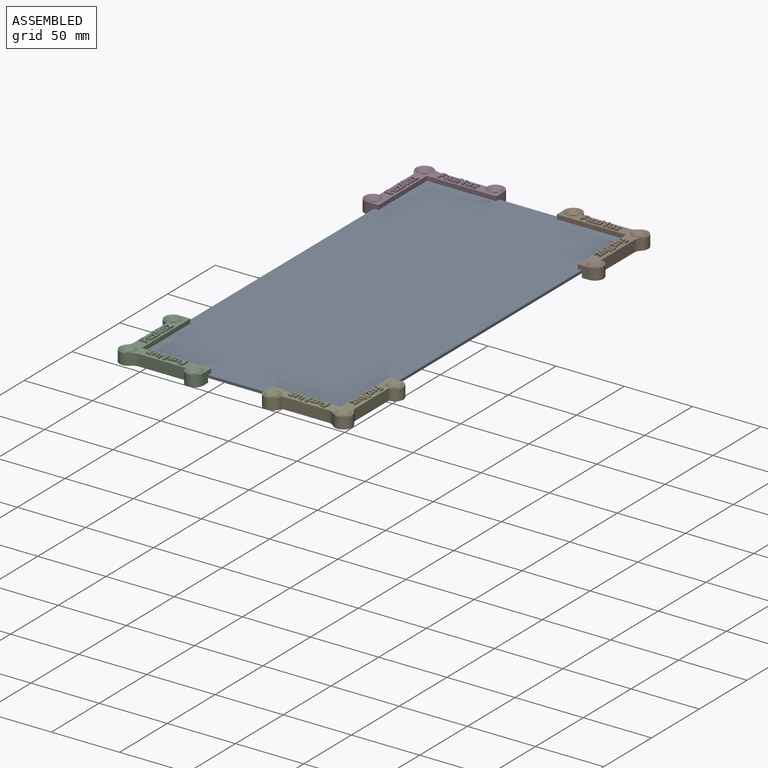
[diagram: assembled view]
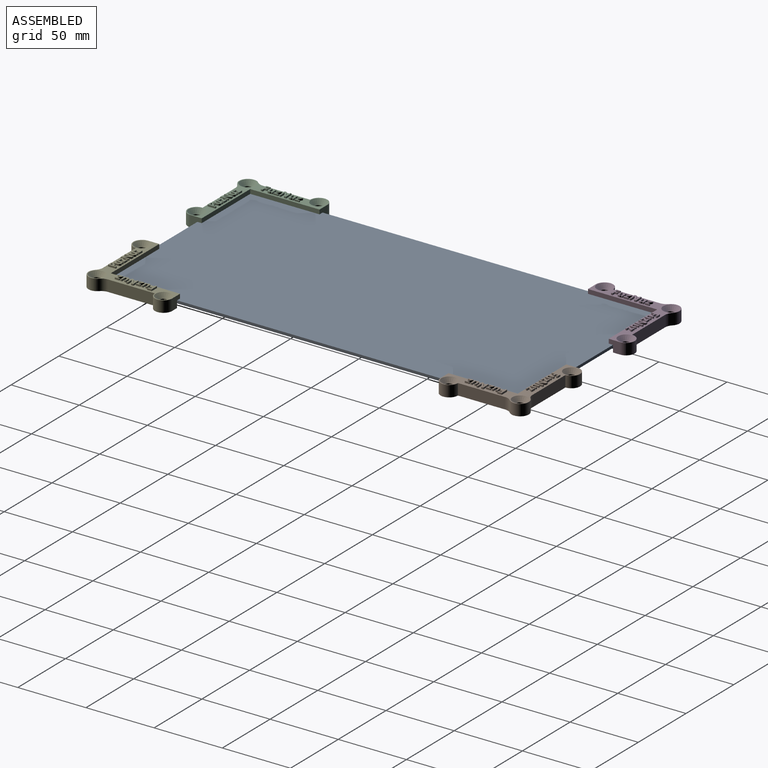
[diagram: assembled view, second angle]
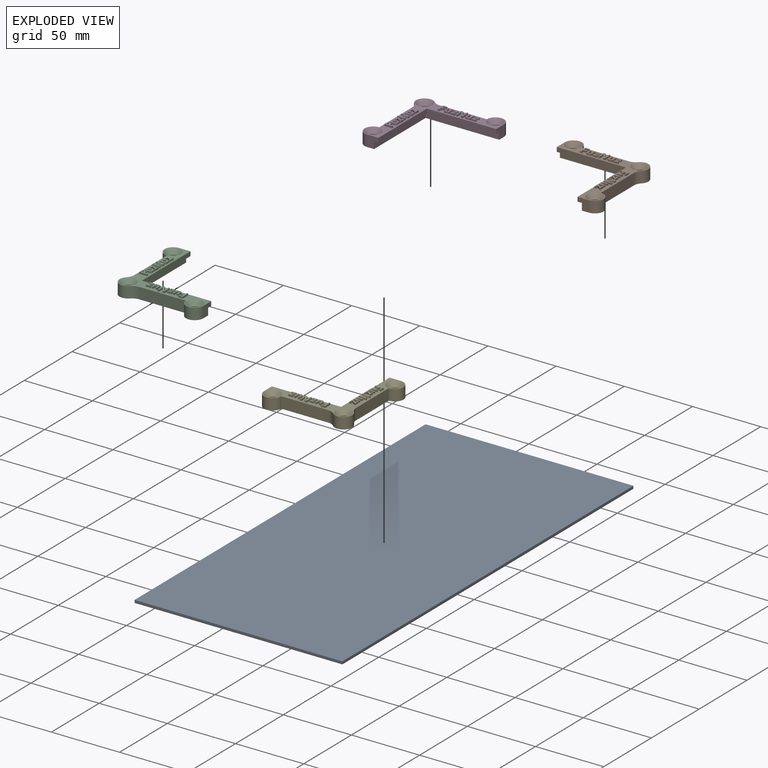
[diagram: exploded view]
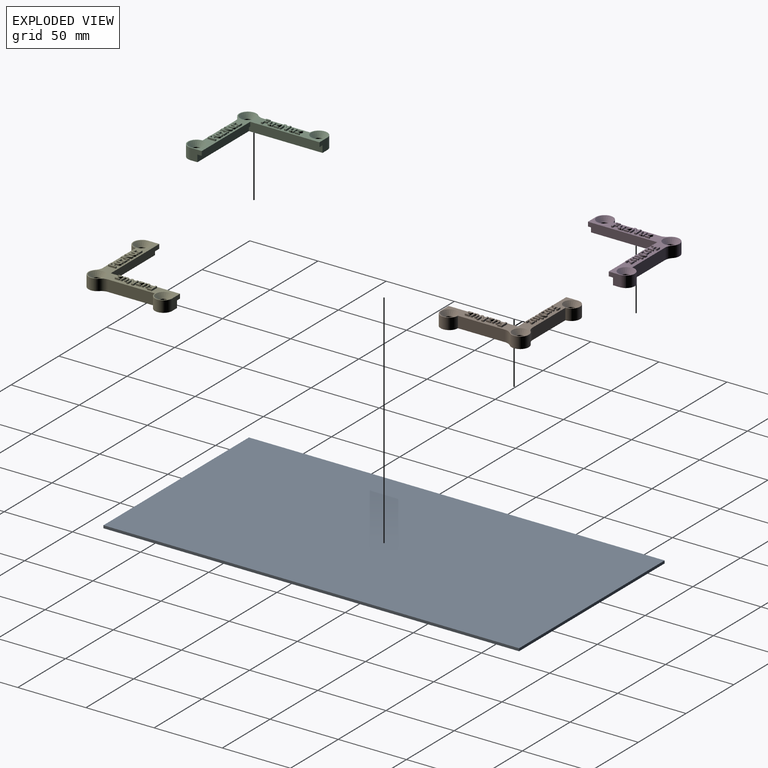
[diagram: exploded view, second angle]
ASSEMBLY  parts=5 mates=4
PART A: 6 faces, bbox 152.4x304.8x2 mm
  f0: plane 304.8x1.98mm, normal (1,0,0), area 603.9mm2, adj f1,f3,f4,f5
  f1: plane 152.4x1.98mm, normal (0,1,0), area 301.9mm2, adj f0,f2,f4,f5
  f2: plane 304.8x1.98mm, normal (-1,0,0), area 603.9mm2, adj f1,f3,f4,f5
  f3: plane 152.4x1.98mm, normal (0,-1,0), area 301.9mm2, adj f0,f2,f4,f5
  f4: plane 304.8x152.4mm, normal (0,0,1), area 46451.5mm2, adj f0,f1,f2,f3
  f5: plane 304.8x152.4mm, normal (0,0,-1), area 46451.5mm2, adj f0,f1,f2,f3
PART B: 190 faces, bbox 65.4x65.4x9.5 mm
  f0: plane 65.41x65.41mm, normal (0,0,1), area 649.1mm2, adj f1,f3,f4,f5,f6,f7,f8,f9
  f1: plane 8.26x8.26mm, normal (0,-1,0), area 52mm2, adj f0,f2,f3,f10,f14,f15
  f2: plane 65.41x65.41mm, normal (0,0,-1), area 685.2mm2, adj f1,f5,f6,f7,f8,f9,f10,f11
  f3: plane 50.8x3.18mm, normal (1,0,0), area 161.3mm2, adj f0,f1,f4,f15
  f4: plane 50.8x3.18mm, normal (0,-1,0), area 161.3mm2, adj f0,f3,f5,f15
  f5: plane 8.26x8.26mm, normal (1,0,0), area 52mm2, adj f0,f2,f4,f6,f13,f15
  f6: cylinder r=6.35mm len=12.7mm, axis (0,0,-1), area 164.7mm2, adj f0,f2,f5,f7
  f7: plane 34.48x8.26mm, normal (0,1,0), area 284.7mm2, adj f0,f2,f6,f11
  f8: cylinder r=6.35mm len=10.88mm, axis (0,0,-1), area 165.6mm2, adj f0,f2,f11,f12
  f9: plane 34.48x8.26mm, normal (-1,0,0), area 284.7mm2, adj f0,f2,f10,f12
  f10: cylinder r=6.35mm len=12.7mm, axis (0,0,-1), area 164.7mm2, adj f0,f1,f2,f9
  f11: cylinder r=6.99mm len=8.26mm, axis (0,0,-1), area 45.8mm2, adj f0,f2,f7,f8
  f12: cylinder r=6.99mm len=8.26mm, axis (0,0,-1), area 45.8mm2, adj f0,f2,f8,f9
  f13: plane 53.98x5.08mm, normal (0,-1,0), area 274.2mm2, adj f2,f5,f14,f15
  f14: plane 53.98x5.08mm, normal (1,0,0), area 274.2mm2, adj f1,f2,f13,f15
  f15: plane 53.98x53.98mm, normal (0,0,-1), area 332.7mm2, adj f1,f3,f4,f5,f13,f14
  f16: cylinder r=2.9mm len=5.79mm, axis (0,0,1), area 91.2mm2, adj f2,f17
  f17: cone r=2.9mm half-angle=41deg, axis (0,0,1), area 116.3mm2, adj f0,f16
  f18: cylinder r=2.9mm len=5.79mm, axis (0,0,1), area 91.2mm2, adj f2,f19
  f19: cone r=2.9mm half-angle=41deg, axis (0,0,1), area 116.3mm2, adj f0,f18
  f20: cylinder r=2.9mm len=5.79mm, axis (0,0,1), area 91.2mm2, adj f2,f21
  f21: cone r=2.9mm half-angle=41deg, axis (0,0,1), area 116.3mm2, adj f0,f20
  f22: plane 1.27x1.18mm, normal (0,-1,0), area 1.5mm2, adj f0,f23,f31,f32
  f23: plane 2.24x1.27mm, normal (1,0,0), area 2.8mm2, adj f0,f22,f24,f32
  f24: plane 1.92x1.27mm, normal (0,-1,0), area 2.4mm2, adj f0,f23,f25,f32
  f25: plane 1.27x0.98mm, normal (1,0,0), area 1.2mm2, adj f0,f24,f26,f32
  f26: plane 1.92x1.27mm, normal (0,1,0), area 2.4mm2, adj f0,f25,f27,f32
  f27: plane 1.46x1.27mm, normal (1,0,0), area 1.9mm2, adj f0,f26,f28,f32
  f28: plane 2.07x1.27mm, normal (0,-1,0), area 2.6mm2, adj f0,f27,f29,f32
  f29: plane 1.27x0.98mm, normal (1,0,0), area 1.3mm2, adj f0,f28,f30,f32
  f30: plane 3.25x1.27mm, normal (0,1,0), area 4.1mm2, adj f0,f29,f31,f32
  f31: plane 5.67x1.27mm, normal (-1,0,0), area 7.2mm2, adj f0,f22,f30,f32
  f32: plane 5.67x3.25mm, normal (0,0,1), area 10.6mm2, adj f22,f23,f24,f25,f26,f27,f28,f29
  f33: plane 1.27x0.55mm, normal (-0.96,-0.28,0), area 0.7mm2, adj f0,f34,f49,f50
  f34: plane 1.27x0.91mm, normal (0,-1,0), area 1.2mm2, adj f0,f33,f35,f50
  f35: plane 4.33x1.27mm, normal (1,0,0), area 5.5mm2, adj f0,f34,f36,f50
  f36: plane 1.27x1.18mm, normal (0,1,0), area 1.5mm2, adj f0,f35,f37,f50
  f37: plane 2.04x1.27mm, normal (-1,0,0), area 2.6mm2, adj f0,f36,f38,f50
  f38: extruded ~1.27x1.1mm, area 1.4mm2, adj f0,f37,f39,f50
  f39: extruded ~1.27x0.72mm, area 1mm2, adj f0,f38,f40,f50
  f40: extruded ~1.27x0.53mm, area 0.8mm2, adj f0,f39,f41,f50
  f41: extruded ~1.27x0.7mm, area 0.9mm2, adj f0,f40,f42,f50
  f42: plane 2.53x1.27mm, normal (1,0,0), area 3.2mm2, adj f0,f41,f43,f50
  f43: plane 1.27x1.18mm, normal (0,1,0), area 1.5mm2, adj f0,f42,f44,f50
  f44: plane 2.83x1.27mm, normal (-1,0,0), area 3.6mm2, adj f0,f43,f45,f50
  f45: extruded ~1.27x1.18mm, area 1.6mm2, adj f0,f44,f46,f50
  f46: extruded ~1.27x1.15mm, area 1.6mm2, adj f0,f45,f47,f50
  f47: extruded ~1.27x0.79mm, area 1mm2, adj f0,f46,f48,f50
  f48: extruded ~1.27x0.54mm, area 0.9mm2, adj f0,f47,f49,f50
  f49: plane 1.27x0.06mm, normal (0,-1,0), area 0.1mm2, adj f0,f33,f48,f50
  f50: plane 4.41x4mm, normal (0,0,1), area 11.5mm2, adj f33,f34,f35,f36,f37,f38,f39,f40
  f51: plane 3.42x1.27mm, normal (0,-1,0), area 4.3mm2, adj f0,f52,f60,f61
  f52: plane 1.27x0.9mm, normal (1,0,0), area 1.1mm2, adj f0,f51,f53,f61
  f53: plane 2.02x1.27mm, normal (0,1,0), area 2.6mm2, adj f0,f52,f54,f61
  f54: plane 2.66x1.95mm, normal (0.81,-0.59,0), area 4.2mm2, adj f0,f53,f55,f61
  f55: plane 1.27x0.77mm, normal (1,0,0), area 1mm2, adj f0,f54,f56,f61
  f56: plane 3.23x1.27mm, normal (0,1,0), area 4.1mm2, adj f0,f55,f57,f61
  f57: plane 1.27x0.9mm, normal (-1,0,0), area 1.1mm2, adj f0,f56,f58,f61
  f58: plane 1.89x1.27mm, normal (0,-1,0), area 2.4mm2, adj f0,f57,f59,f61
  f59: plane 2.73x2.01mm, normal (-0.81,0.59,0), area 4.3mm2, adj f0,f58,f60,f61
  f60: plane 1.27x0.7mm, normal (-1,0,0), area 0.9mm2, adj f0,f51,f59,f61
  f61: plane 4.33x3.42mm, normal (0,0,1), area 9.1mm2, adj f51,f52,f53,f54,f55,f56,f57,f58
  f62: plane 1.53x1.27mm, normal (0,-1,0), area 1.9mm2, adj f0,f63,f75,f76
  f63: plane 5.67x1.27mm, normal (1,0,0), area 7.2mm2, adj f0,f62,f64,f76
  f64: plane 1.27x1.08mm, normal (0,1,0), area 1.4mm2, adj f0,f63,f65,f76
  f65: plane 2.68x1.27mm, normal (-1,0,0), area 3.4mm2, adj f0,f64,f66,f76
  f66: extruded ~1.56x1.27mm, area 2mm2, adj f0,f65,f67,f76
  f67: plane 1.27x0.03mm, normal (0,1,0), area 0mm2, adj f0,f66,f68,f76
  f68: plane 4.24x2.46mm, normal (0.87,0.5,0), area 6.2mm2, adj f0,f67,f69,f76
  f69: plane 1.52x1.27mm, normal (0,1,0), area 1.9mm2, adj f0,f68,f70,f76
  f70: plane 5.67x1.27mm, normal (-1,0,0), area 7.2mm2, adj f0,f69,f71,f76
  f71: plane 1.27x1.07mm, normal (0,-1,0), area 1.4mm2, adj f0,f70,f72,f76
  f72: plane 2.67x1.27mm, normal (1,0,0), area 3.4mm2, adj f0,f71,f73,f76
  f73: extruded ~1.62x1.27mm, area 2.1mm2, adj f0,f72,f74,f76
  f74: plane 1.27x0.03mm, normal (0,-1,0), area 0mm2, adj f0,f73,f75,f76
  f75: plane 4.29x2.47mm, normal (-0.87,-0.5,0), area 6.3mm2, adj f0,f62,f74,f76
  f76: plane 5.67x5.03mm, normal (0,0,1), area 18.2mm2, adj f62,f63,f64,f65,f66,f67,f68,f69
  f77: plane 1.27x0.55mm, normal (-0.96,-0.28,0), area 0.7mm2, adj f0,f78,f93,f94
  f78: plane 1.27x0.91mm, normal (0,-1,0), area 1.2mm2, adj f0,f77,f79,f94
  f79: plane 4.33x1.27mm, normal (1,0,0), area 5.5mm2, adj f0,f78,f80,f94
  f80: plane 1.27x1.18mm, normal (0,1,0), area 1.5mm2, adj f0,f79,f81,f94
  f81: plane 2.04x1.27mm, normal (-1,0,0), area 2.6mm2, adj f0,f80,f82,f94
  f82: extruded ~1.27x1.1mm, area 1.4mm2, adj f0,f81,f83,f94
  f83: extruded ~1.27x0.72mm, area 1mm2, adj f0,f82,f84,f94
  f84: extruded ~1.27x0.53mm, area 0.8mm2, adj f0,f83,f85,f94
  f85: extruded ~1.27x0.7mm, area 0.9mm2, adj f0,f84,f86,f94
  f86: plane 2.53x1.27mm, normal (1,0,0), area 3.2mm2, adj f0,f85,f87,f94
  f87: plane 1.27x1.18mm, normal (0,1,0), area 1.5mm2, adj f0,f86,f88,f94
  f88: plane 2.83x1.27mm, normal (-1,0,0), area 3.6mm2, adj f0,f87,f89,f94
  f89: extruded ~1.27x1.18mm, area 1.6mm2, adj f0,f88,f90,f94
  f90: extruded ~1.27x1.15mm, area 1.6mm2, adj f0,f89,f91,f94
  f91: extruded ~1.27x0.79mm, area 1mm2, adj f0,f90,f92,f94
  f92: extruded ~1.27x0.54mm, area 0.9mm2, adj f0,f91,f93,f94
  f93: plane 1.27x0.06mm, normal (0,-1,0), area 0.1mm2, adj f0,f77,f92,f94
  f94: plane 4.41x4mm, normal (0,0,1), area 11.5mm2, adj f77,f78,f79,f80,f81,f82,f83,f84
  f95: plane 3.42x1.27mm, normal (0,-1,0), area 4.3mm2, adj f0,f96,f104,f105
  f96: plane 1.27x0.9mm, normal (1,0,0), area 1.1mm2, adj f0,f95,f97,f105
  f97: plane 2.02x1.27mm, normal (0,1,0), area 2.6mm2, adj f0,f96,f98,f105
  f98: plane 2.66x1.95mm, normal (0.81,-0.59,0), area 4.2mm2, adj f0,f97,f99,f105
  f99: plane 1.27x0.77mm, normal (1,0,0), area 1mm2, adj f0,f98,f100,f105
  f100: plane 3.23x1.27mm, normal (0,1,0), area 4.1mm2, adj f0,f99,f101,f105
  f101: plane 1.27x0.9mm, normal (-1,0,0), area 1.1mm2, adj f0,f100,f102,f105
  f102: plane 1.89x1.27mm, normal (0,-1,0), area 2.4mm2, adj f0,f101,f103,f105
  f103: plane 2.73x2.01mm, normal (-0.81,0.59,0), area 4.3mm2, adj f0,f102,f104,f105
  f104: plane 1.27x0.7mm, normal (-1,0,0), area 0.9mm2, adj f0,f95,f103,f105
  f105: plane 4.33x3.42mm, normal (0,0,1), area 9.1mm2, adj f95,f96,f97,f98,f99,f100,f101,f102
  f106: plane 1.27x1.18mm, normal (1,0,0), area 1.5mm2, adj f0,f107,f115,f116
  f107: plane 2.24x1.27mm, normal (0,1,0), area 2.8mm2, adj f0,f106,f108,f116
  f108: plane 1.92x1.27mm, normal (1,0,0), area 2.4mm2, adj f0,f107,f109,f116
  f109: plane 1.27x0.98mm, normal (0,1,0), area 1.2mm2, adj f0,f108,f110,f116
  f110: plane 1.92x1.27mm, normal (-1,0,0), area 2.4mm2, adj f0,f109,f111,f116
  f111: plane 1.46x1.27mm, normal (0,1,0), area 1.9mm2, adj f0,f110,f112,f116
  f112: plane 2.07x1.27mm, normal (1,0,0), area 2.6mm2, adj f0,f111,f113,f116
  f113: plane 1.27x0.98mm, normal (0,1,0), area 1.3mm2, adj f0,f112,f114,f116
  f114: plane 3.25x1.27mm, normal (-1,0,0), area 4.1mm2, adj f0,f113,f115,f116
  f115: plane 5.67x1.27mm, normal (0,-1,0), area 7.2mm2, adj f0,f106,f114,f116
  f116: plane 5.67x3.25mm, normal (0,0,1), area 10.6mm2, adj f106,f107,f108,f109,f110,f111,f112,f113
  f117: plane 1.27x0.55mm, normal (0.28,-0.96,0), area 0.7mm2, adj f0,f118,f133,f134
  f118: plane 1.27x0.91mm, normal (1,0,0), area 1.2mm2, adj f0,f117,f119,f134
  f119: plane 4.33x1.27mm, normal (0,1,0), area 5.5mm2, adj f0,f118,f120,f134
  f120: plane 1.27x1.18mm, normal (-1,0,0), area 1.5mm2, adj f0,f119,f121,f134
  f121: plane 2.04x1.27mm, normal (0,-1,0), area 2.6mm2, adj f0,f120,f122,f134
  f122: extruded ~1.27x1.1mm, area 1.4mm2, adj f0,f121,f123,f134
  f123: extruded ~1.27x0.72mm, area 1mm2, adj f0,f122,f124,f134
  f124: extruded ~1.27x0.53mm, area 0.8mm2, adj f0,f123,f125,f134
  f125: extruded ~1.27x0.7mm, area 0.9mm2, adj f0,f124,f126,f134
  f126: plane 2.53x1.27mm, normal (0,1,0), area 3.2mm2, adj f0,f125,f127,f134
  f127: plane 1.27x1.18mm, normal (-1,0,0), area 1.5mm2, adj f0,f126,f128,f134
  f128: plane 2.83x1.27mm, normal (0,-1,0), area 3.6mm2, adj f0,f127,f129,f134
  f129: extruded ~1.27x1.18mm, area 1.6mm2, adj f0,f128,f130,f134
  f130: extruded ~1.27x1.15mm, area 1.6mm2, adj f0,f129,f131,f134
  f131: extruded ~1.27x0.79mm, area 1mm2, adj f0,f130,f132,f134
  f132: extruded ~1.27x0.54mm, area 0.9mm2, adj f0,f131,f133,f134
  f133: plane 1.27x0.06mm, normal (1,0,0), area 0.1mm2, adj f0,f117,f132,f134
  f134: plane 4.41x4mm, normal (0,0,1), area 11.5mm2, adj f117,f118,f119,f120,f121,f122,f123,f124
  f135: plane 3.42x1.27mm, normal (1,0,0), area 4.3mm2, adj f0,f136,f144,f145
  f136: plane 1.27x0.9mm, normal (0,1,0), area 1.1mm2, adj f0,f135,f137,f145
  f137: plane 2.02x1.27mm, normal (-1,0,0), area 2.6mm2, adj f0,f136,f138,f145
  f138: plane 2.66x1.95mm, normal (0.59,0.81,0), area 4.2mm2, adj f0,f137,f139,f145
  f139: plane 1.27x0.77mm, normal (0,1,0), area 1mm2, adj f0,f138,f140,f145
  f140: plane 3.23x1.27mm, normal (-1,0,0), area 4.1mm2, adj f0,f139,f141,f145
  f141: plane 1.27x0.9mm, normal (0,-1,0), area 1.1mm2, adj f0,f140,f142,f145
  f142: plane 1.89x1.27mm, normal (1,0,0), area 2.4mm2, adj f0,f141,f143,f145
  f143: plane 2.73x2.01mm, normal (-0.59,-0.81,0), area 4.3mm2, adj f0,f142,f144,f145
  f144: plane 1.27x0.7mm, normal (0,-1,0), area 0.9mm2, adj f0,f135,f143,f145
  f145: plane 4.33x3.42mm, normal (0,0,1), area 9.1mm2, adj f135,f136,f137,f138,f139,f140,f141,f142
  f146: plane 1.53x1.27mm, normal (1,0,0), area 1.9mm2, adj f0,f147,f159,f160
  f147: plane 5.67x1.27mm, normal (0,1,0), area 7.2mm2, adj f0,f146,f148,f160
  f148: plane 1.27x1.08mm, normal (-1,0,0), area 1.4mm2, adj f0,f147,f149,f160
  f149: plane 2.68x1.27mm, normal (0,-1,0), area 3.4mm2, adj f0,f148,f150,f160
  f150: extruded ~1.56x1.27mm, area 2mm2, adj f0,f149,f151,f160
  f151: plane 1.27x0.03mm, normal (-1,0,0), area 0mm2, adj f0,f150,f152,f160
  f152: plane 4.24x2.46mm, normal (-0.5,0.87,0), area 6.2mm2, adj f0,f151,f153,f160
  f153: plane 1.52x1.27mm, normal (-1,0,0), area 1.9mm2, adj f0,f152,f154,f160
  f154: plane 5.67x1.27mm, normal (0,-1,0), area 7.2mm2, adj f0,f153,f155,f160
  f155: plane 1.27x1.07mm, normal (1,0,0), area 1.4mm2, adj f0,f154,f156,f160
  f156: plane 2.67x1.27mm, normal (0,1,0), area 3.4mm2, adj f0,f155,f157,f160
  f157: extruded ~1.62x1.27mm, area 2.1mm2, adj f0,f156,f158,f160
  f158: plane 1.27x0.03mm, normal (1,0,0), area 0mm2, adj f0,f157,f159,f160
  f159: plane 4.29x2.47mm, normal (0.5,-0.87,0), area 6.3mm2, adj f0,f146,f158,f160
  f160: plane 5.67x5.03mm, normal (0,0,1), area 18.2mm2, adj f146,f147,f148,f149,f150,f151,f152,f153
  f161: plane 1.27x0.55mm, normal (0.28,-0.96,0), area 0.7mm2, adj f0,f162,f177,f178
  f162: plane 1.27x0.91mm, normal (1,0,0), area 1.2mm2, adj f0,f161,f163,f178
  f163: plane 4.33x1.27mm, normal (0,1,0), area 5.5mm2, adj f0,f162,f164,f178
  f164: plane 1.27x1.18mm, normal (-1,0,0), area 1.5mm2, adj f0,f163,f165,f178
  f165: plane 2.04x1.27mm, normal (0,-1,0), area 2.6mm2, adj f0,f164,f166,f178
  f166: extruded ~1.27x1.1mm, area 1.4mm2, adj f0,f165,f167,f178
  f167: extruded ~1.27x0.72mm, area 1mm2, adj f0,f166,f168,f178
  f168: extruded ~1.27x0.53mm, area 0.8mm2, adj f0,f167,f169,f178
  f169: extruded ~1.27x0.7mm, area 0.9mm2, adj f0,f168,f170,f178
  f170: plane 2.53x1.27mm, normal (0,1,0), area 3.2mm2, adj f0,f169,f171,f178
  f171: plane 1.27x1.18mm, normal (-1,0,0), area 1.5mm2, adj f0,f170,f172,f178
  f172: plane 2.83x1.27mm, normal (0,-1,0), area 3.6mm2, adj f0,f171,f173,f178
  f173: extruded ~1.27x1.18mm, area 1.6mm2, adj f0,f172,f174,f178
  f174: extruded ~1.27x1.15mm, area 1.6mm2, adj f0,f173,f175,f178
  f175: extruded ~1.27x0.79mm, area 1mm2, adj f0,f174,f176,f178
  f176: extruded ~1.27x0.54mm, area 0.9mm2, adj f0,f175,f177,f178
  f177: plane 1.27x0.06mm, normal (1,0,0), area 0.1mm2, adj f0,f161,f176,f178
  f178: plane 4.41x4mm, normal (0,0,1), area 11.5mm2, adj f161,f162,f163,f164,f165,f166,f167,f168
  f179: plane 3.42x1.27mm, normal (1,0,0), area 4.3mm2, adj f0,f180,f188,f189
  f180: plane 1.27x0.9mm, normal (0,1,0), area 1.1mm2, adj f0,f179,f181,f189
  f181: plane 2.02x1.27mm, normal (-1,0,0), area 2.6mm2, adj f0,f180,f182,f189
  f182: plane 2.66x1.95mm, normal (0.59,0.81,0), area 4.2mm2, adj f0,f181,f183,f189
  f183: plane 1.27x0.77mm, normal (0,1,0), area 1mm2, adj f0,f182,f184,f189
  f184: plane 3.23x1.27mm, normal (-1,0,0), area 4.1mm2, adj f0,f183,f185,f189
  f185: plane 1.27x0.9mm, normal (0,-1,0), area 1.1mm2, adj f0,f184,f186,f189
  f186: plane 1.89x1.27mm, normal (1,0,0), area 2.4mm2, adj f0,f185,f187,f189
  f187: plane 2.73x2.01mm, normal (-0.59,-0.81,0), area 4.3mm2, adj f0,f186,f188,f189
  f188: plane 1.27x0.7mm, normal (0,-1,0), area 0.9mm2, adj f0,f179,f187,f189
  f189: plane 4.33x3.42mm, normal (0,0,1), area 9.1mm2, adj f179,f180,f181,f182,f183,f184,f185,f186
PART C: same geometry as B
PART D: same geometry as B
PART E: same geometry as B
PLACE A t=(-81.28,-128.37,3.1)mm
PLACE B rot(axis=(0,0,-1),90deg) t=(-8.26,20.86,0)mm
PLACE C rot(axis=(0,0,1),90deg) t=(-154.3,-277.59,0)mm
PLACE D t=(-154.31,20.86,0)mm
PLACE E rot(axis=(0,0,-1),180deg) t=(-8.25,-277.59,0)mm
MATE fastened A.f4 <-> D.f15  axis (0,0,1) through (-157.48,24.03,5.08)mm
MATE fastened A.f4 <-> C.f15  axis (0,0,-1) through (-157.48,-280.77,5.08)mm
MATE fastened A.f4 <-> E.f15  axis (0,0,1) through (-5.08,-280.77,5.08)mm
MATE fastened A.f4 <-> B.f15  axis (0,0,1) through (-5.08,24.03,5.08)mm
